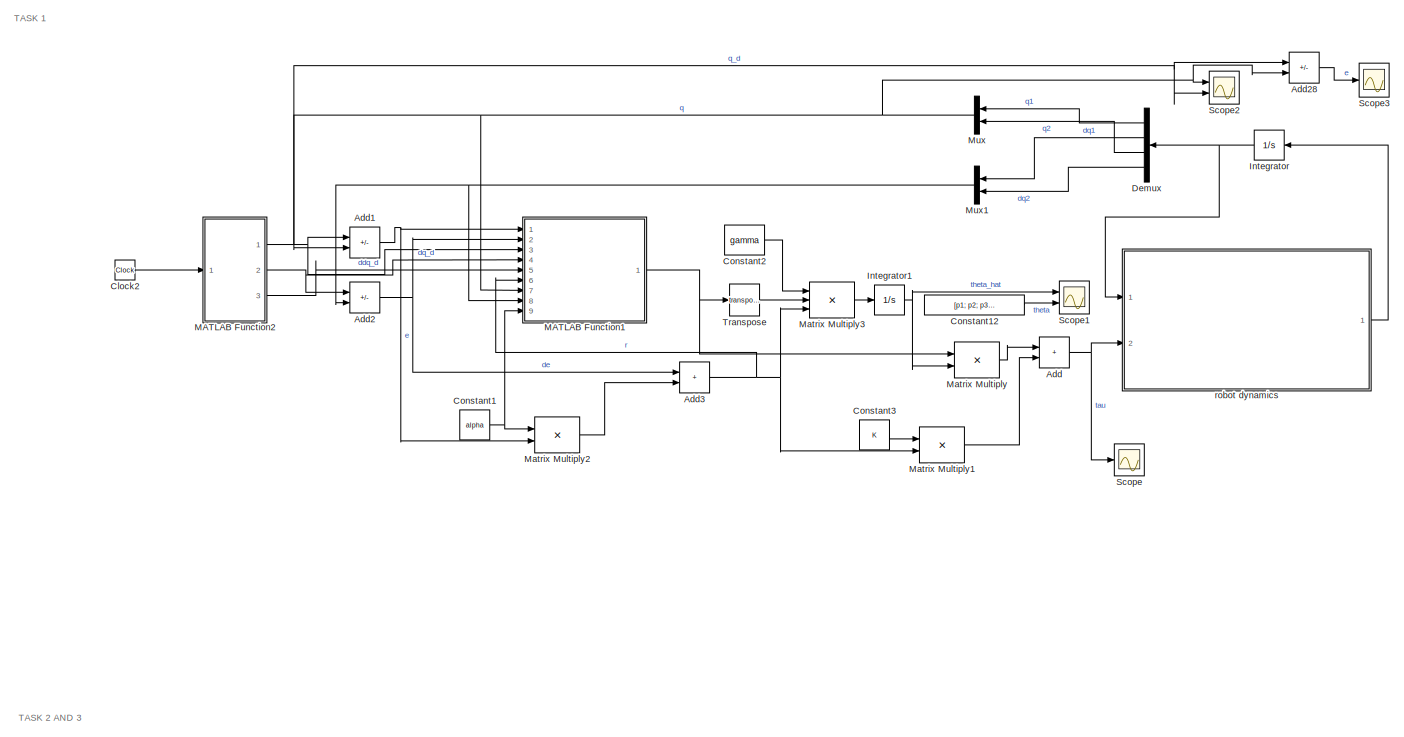
[diagram: root canvas - part 1/9, top left region]
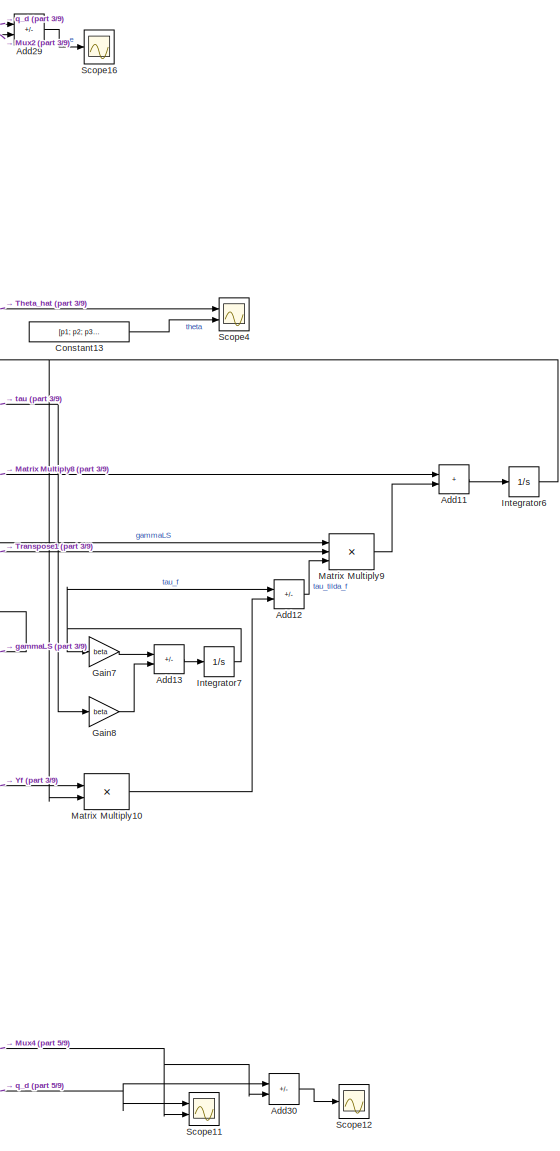
[diagram: root canvas - part 2/9, middle right region]
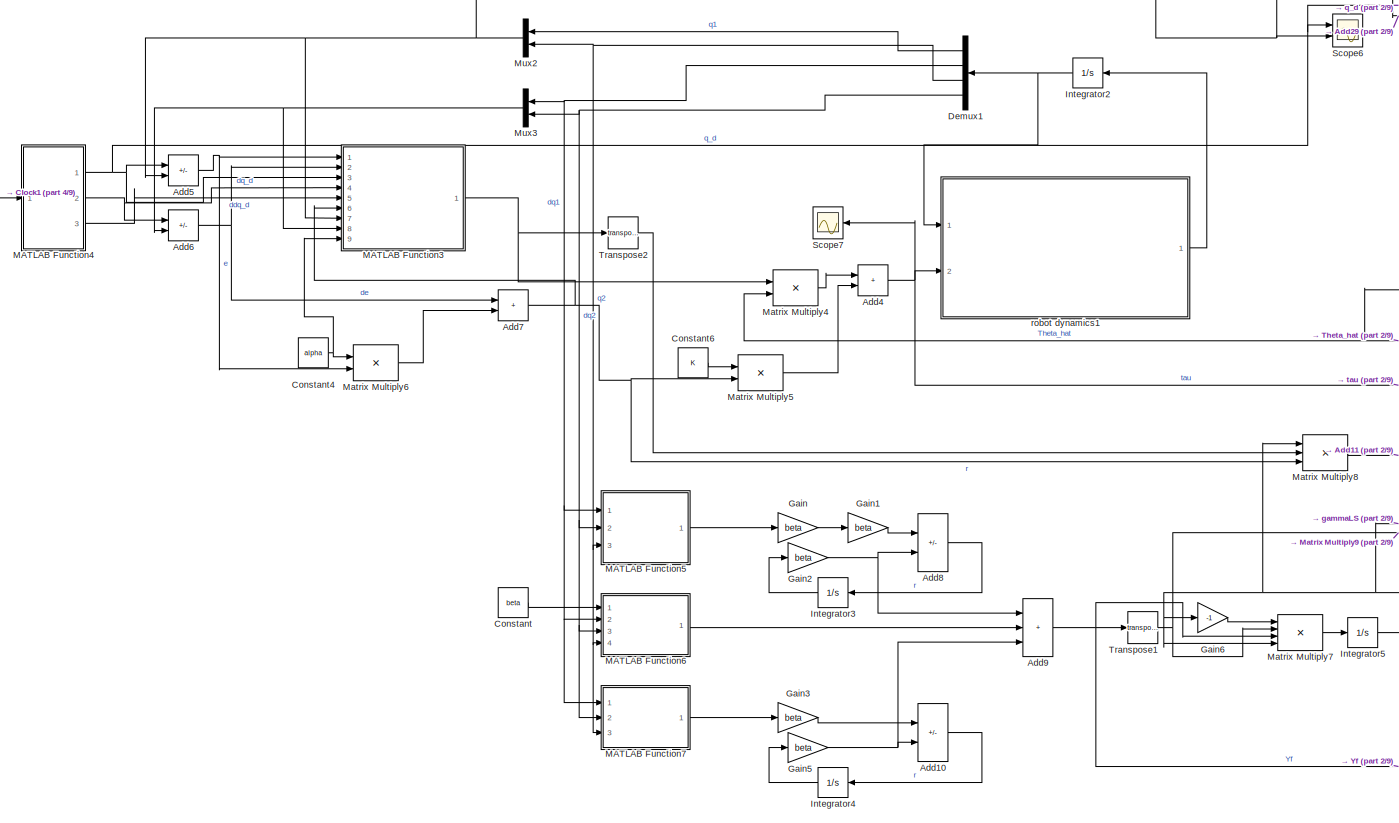
[diagram: root canvas - part 3/9, central region]
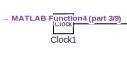
[diagram: root canvas - part 4/9, top left region]
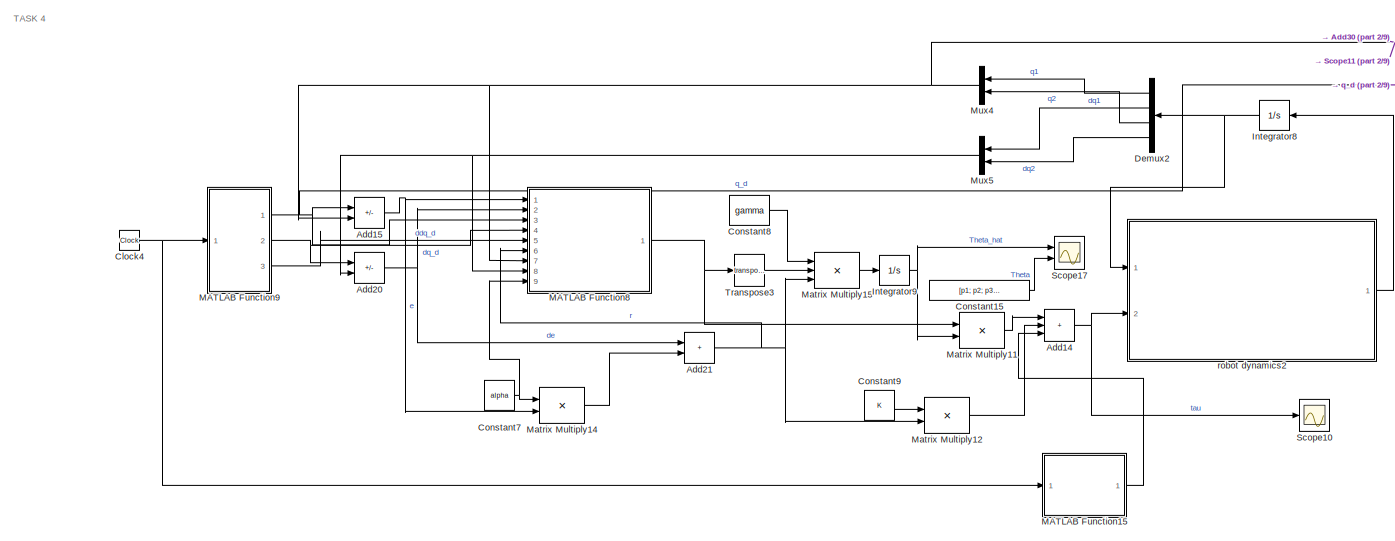
[diagram: root canvas - part 5/9, middle left region]
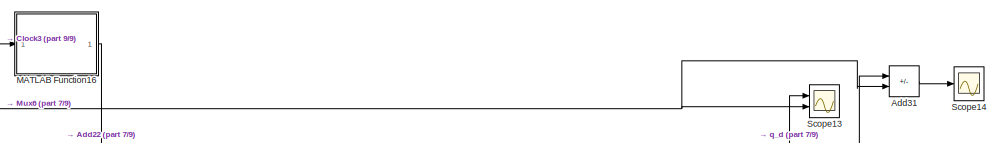
[diagram: root canvas - part 6/9, bottom center region]
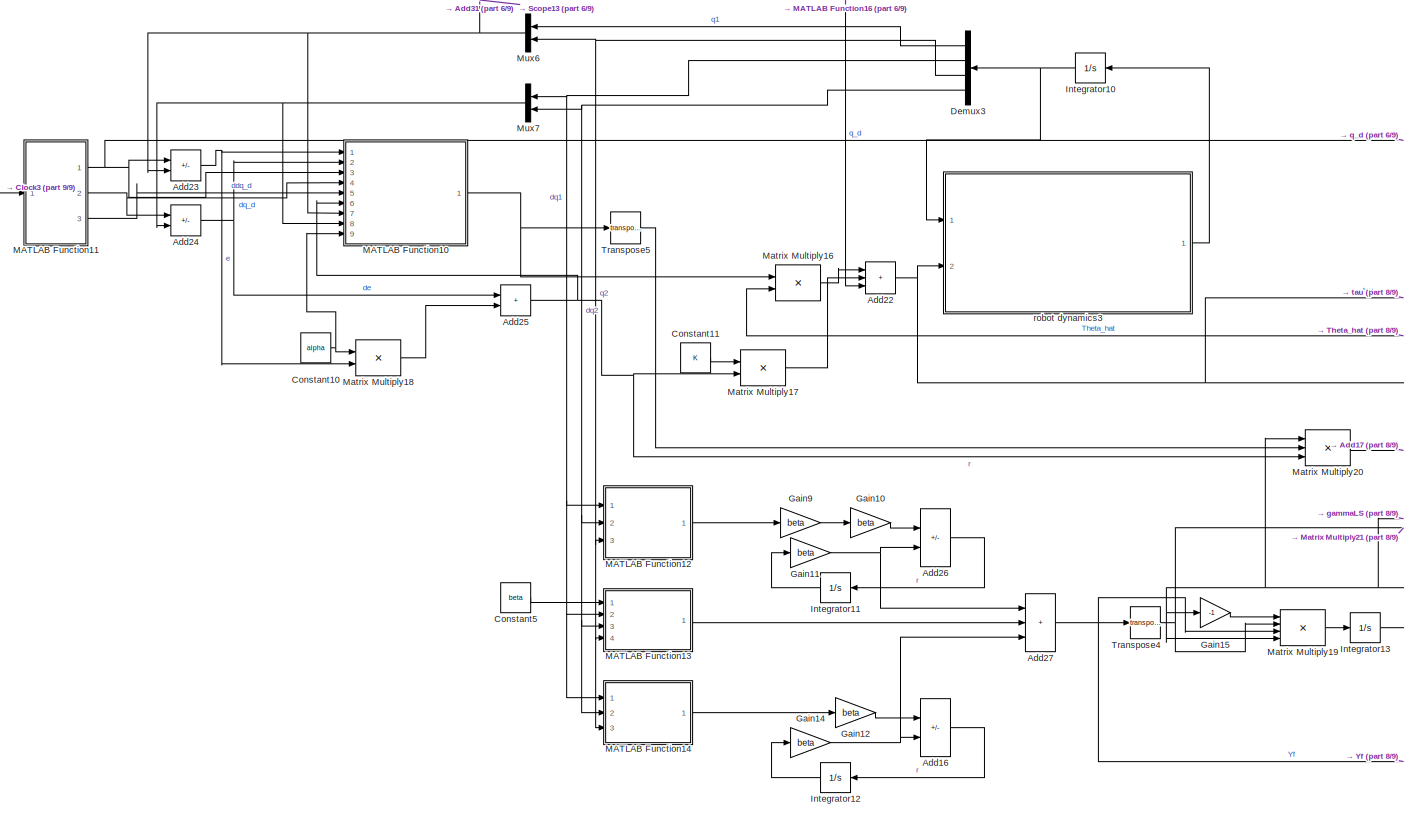
[diagram: root canvas - part 7/9, bottom center region]
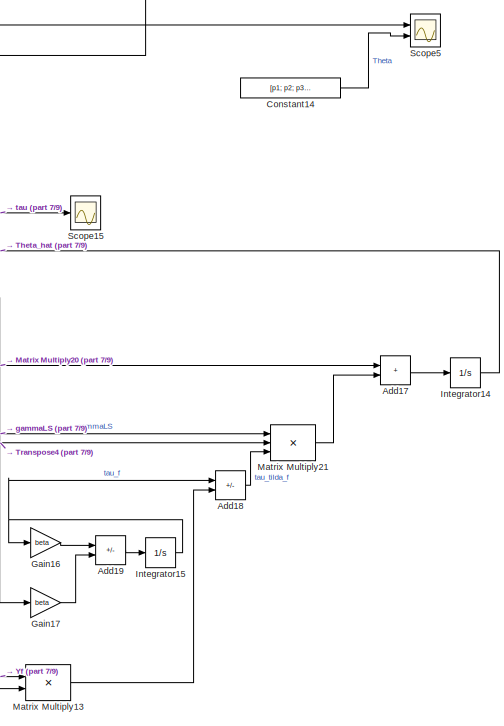
[diagram: root canvas - part 8/9, bottom right region]
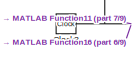
[diagram: root canvas - part 9/9, bottom left region]
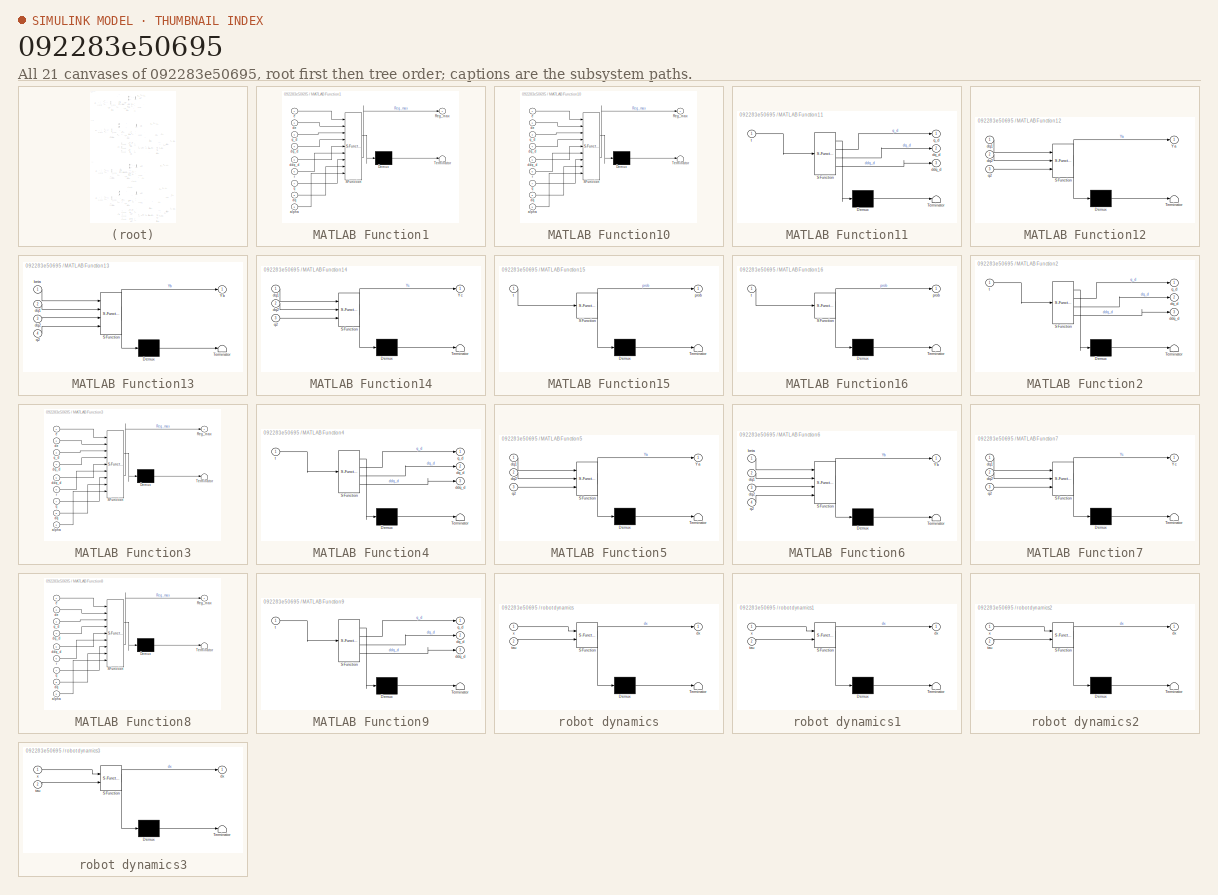
[diagram: thumbnail index - all 21 canvases of the model, root first then tree order]
MODEL slx_092283e50695
KIND model
CONFIG AbsTol = auto
CONFIG EnableMultiTasking = off
CONFIG FixedStep = 1e-3
CONFIG InitFcn = acm_init
CONFIG MaxStep = auto
CONFIG MinStep = auto
CONFIG RelTol = 1e-3
CONFIG SampleTimeConstraint = Unconstrained
CONFIG Solver = ode4
CONFIG SolverName = ode4
CONFIG StartTime = 0.0
CONFIG StopTime = 30
BLOCK [Sum] Add
  IconShape = rectangular
  Ports = [2, 1]
BLOCK [Sum] Add1
  IconShape = rectangular
  Inputs = +-
  Ports = [2, 1]
BLOCK [Sum] Add10
  IconShape = rectangular
  Inputs = +-
  Ports = [2, 1]
BLOCK [Sum] Add11
  IconShape = rectangular
  Ports = [2, 1]
BLOCK [Sum] Add12
  IconShape = rectangular
  Inputs = +-
  Ports = [2, 1]
BLOCK [Sum] Add13
  IconShape = rectangular
  Inputs = -+
  Ports = [2, 1]
BLOCK [Sum] Add14
  IconShape = rectangular
  Inputs = +++
  Ports = [3, 1]
BLOCK [Sum] Add15
  IconShape = rectangular
  Inputs = +-
  Ports = [2, 1]
BLOCK [Sum] Add16
  IconShape = rectangular
  Inputs = +-
  Ports = [2, 1]
BLOCK [Sum] Add17
  IconShape = rectangular
  Ports = [2, 1]
BLOCK [Sum] Add18
  IconShape = rectangular
  Inputs = +-
  Ports = [2, 1]
BLOCK [Sum] Add19
  IconShape = rectangular
  Inputs = -+
  Ports = [2, 1]
BLOCK [Sum] Add2
  IconShape = rectangular
  Inputs = +-
  Ports = [2, 1]
BLOCK [Sum] Add20
  IconShape = rectangular
  Inputs = +-
  Ports = [2, 1]
BLOCK [Sum] Add21
  IconShape = rectangular
  Ports = [2, 1]
BLOCK [Sum] Add22
  IconShape = rectangular
  Inputs = +++
  Ports = [3, 1]
BLOCK [Sum] Add23
  IconShape = rectangular
  Inputs = +-
  Ports = [2, 1]
BLOCK [Sum] Add24
  IconShape = rectangular
  Inputs = +-
  Ports = [2, 1]
BLOCK [Sum] Add25
  IconShape = rectangular
  Ports = [2, 1]
BLOCK [Sum] Add26
  IconShape = rectangular
  Inputs = --
  Ports = [2, 1]
BLOCK [Sum] Add27
  IconShape = rectangular
  Inputs = +++
  Ports = [3, 1]
BLOCK [Sum] Add28
  IconShape = rectangular
  Inputs = +-
  Ports = [2, 1]
BLOCK [Sum] Add29
  IconShape = rectangular
  Inputs = +-
  Ports = [2, 1]
BLOCK [Sum] Add3
  IconShape = rectangular
  Ports = [2, 1]
BLOCK [Sum] Add30
  IconShape = rectangular
  Inputs = +-
  Ports = [2, 1]
BLOCK [Sum] Add31
  IconShape = rectangular
  Inputs = +-
  Ports = [2, 1]
BLOCK [Sum] Add4
  IconShape = rectangular
  Ports = [2, 1]
BLOCK [Sum] Add5
  IconShape = rectangular
  Inputs = +-
  Ports = [2, 1]
BLOCK [Sum] Add6
  IconShape = rectangular
  Inputs = +-
  Ports = [2, 1]
BLOCK [Sum] Add7
  IconShape = rectangular
  Ports = [2, 1]
BLOCK [Sum] Add8
  IconShape = rectangular
  Inputs = --
  Ports = [2, 1]
BLOCK [Sum] Add9
  IconShape = rectangular
  Inputs = +++
  Ports = [3, 1]
BLOCK [Clock] Clock1
BLOCK [Clock] Clock2
BLOCK [Clock] Clock3
BLOCK [Clock] Clock4
BLOCK [Constant] Constant
  Value = beta
BLOCK [Constant] Constant1
  Value = alpha
BLOCK [Constant] Constant10
  Value = alpha
BLOCK [Constant] Constant11
  Value = K
BLOCK [Constant] Constant12
  Value = [p1; p2; p3; fd1; fd2]
BLOCK [Constant] Constant13
  Value = [p1; p2; p3; fd1; fd2]
BLOCK [Constant] Constant14
  Value = [p1; p2; p3; fd1; fd2]
BLOCK [Constant] Constant15
  Value = [p1; p2; p3; fd1; fd2]
BLOCK [Constant] Constant2
  Value = gamma
BLOCK [Constant] Constant3
  Value = K
BLOCK [Constant] Constant4
  Value = alpha
BLOCK [Constant] Constant5
  Value = beta
BLOCK [Constant] Constant6
  Value = K
BLOCK [Constant] Constant7
  Value = alpha
BLOCK [Constant] Constant8
  Value = gamma
BLOCK [Constant] Constant9
  Value = K
BLOCK [Demux] Demux
  Ports = [1, 4]
BLOCK [Demux] Demux1
  Ports = [1, 4]
BLOCK [Demux] Demux2
  Ports = [1, 4]
BLOCK [Demux] Demux3
  Ports = [1, 4]
BLOCK [Gain] Gain
  Gain = beta
BLOCK [Gain] Gain1
  Gain = beta
BLOCK [Gain] Gain10
  Gain = beta
BLOCK [Gain] Gain11
  Gain = beta
BLOCK [Gain] Gain12
  Gain = beta
BLOCK [Gain] Gain14
  Gain = beta
BLOCK [Gain] Gain15
  Gain = -1
BLOCK [Gain] Gain16
  Gain = beta
BLOCK [Gain] Gain17
  Gain = beta
BLOCK [Gain] Gain2
  Gain = beta
BLOCK [Gain] Gain3
  Gain = beta
BLOCK [Gain] Gain5
  Gain = beta
BLOCK [Gain] Gain6
  Gain = -1
BLOCK [Gain] Gain7
  Gain = beta
BLOCK [Gain] Gain8
  Gain = beta
BLOCK [Gain] Gain9
  Gain = beta
BLOCK [Integrator] Integrator
  InitialCondition = [0;0;0;0]
  Ports = [1, 1]
BLOCK [Integrator] Integrator1
  Ports = [1, 1]
BLOCK [Integrator] Integrator10
  InitialCondition = [0;0;0;0]
  Ports = [1, 1]
BLOCK [Integrator] Integrator11
  Ports = [1, 1]
BLOCK [Integrator] Integrator12
  Ports = [1, 1]
BLOCK [Integrator] Integrator13
  InitialCondition = [1 0 0 0 0; 0 1 0 0 0; 0 0 1 0 0; 0 0 0 1 0; 0 0 0 0 1]
  Ports = [1, 1]
BLOCK [Integrator] Integrator14
  Ports = [1, 1]
BLOCK [Integrator] Integrator15
  Ports = [1, 1]
BLOCK [Integrator] Integrator2
  InitialCondition = [0;0;0;0]
  Ports = [1, 1]
BLOCK [Integrator] Integrator3
  Ports = [1, 1]
BLOCK [Integrator] Integrator4
  Ports = [1, 1]
BLOCK [Integrator] Integrator5
  InitialCondition = [1 0 0 0 0; 0 1 0 0 0; 0 0 1 0 0; 0 0 0 1 0; 0 0 0 0 1]
  Ports = [1, 1]
BLOCK [Integrator] Integrator6
  Ports = [1, 1]
BLOCK [Integrator] Integrator7
  Ports = [1, 1]
BLOCK [Integrator] Integrator8
  InitialCondition = [0;0;0;0]
  Ports = [1, 1]
BLOCK [Integrator] Integrator9
  Ports = [1, 1]
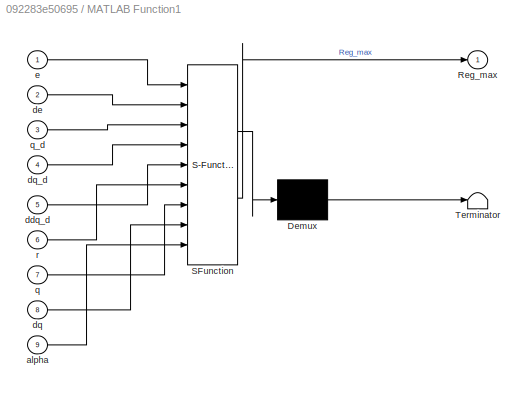
BLOCK [SubSystem] MATLAB Function1
  ErrorFcn = Stateflow.Translate.translate
  PermitHierarchicalResolution = ExplicitOnly
  Ports = [9, 1]
  RequestExecContextInheritance = off
  SFBlockType = MATLAB Function
  TreatAsAtomicUnit = on
BLOCK [Demux] MATLAB Function1/ Demux 
  Outputs = 1
  Ports = [1, 1]
BLOCK [S-Function] MATLAB Function1/ SFunction 
  EnableBusSupport = on
  FunctionName = sf_sfun
  PortCounts = [9 2]
  Ports = [9, 2]
  SFcnIsStateOwnerBlock = off
  SFunctionDeploymentMode = off
  Tag = Stateflow S-Function 1
BLOCK [Terminator] MATLAB Function1/ Terminator 
BLOCK [Outport] MATLAB Function1/Reg_max
  VectorParamsAs1DForOutWhenUnconnected = off
BLOCK [Inport] MATLAB Function1/alpha
  Port = 9
BLOCK [Inport] MATLAB Function1/ddq_d
  Port = 5
BLOCK [Inport] MATLAB Function1/de
  Port = 2
BLOCK [Inport] MATLAB Function1/dq
  Port = 8
BLOCK [Inport] MATLAB Function1/dq_d
  Port = 4
BLOCK [Inport] MATLAB Function1/e
BLOCK [Inport] MATLAB Function1/q
  Port = 7
BLOCK [Inport] MATLAB Function1/q_d
  Port = 3
BLOCK [Inport] MATLAB Function1/r
  Port = 6
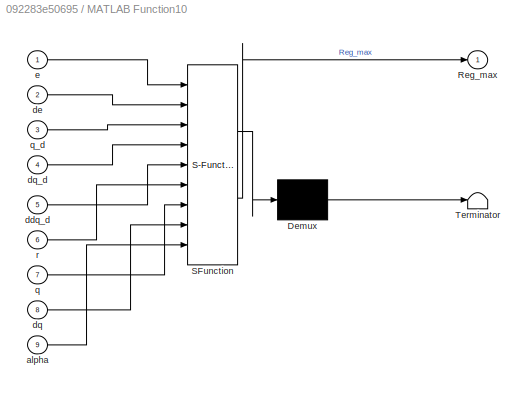
BLOCK [SubSystem] MATLAB Function10
  ErrorFcn = Stateflow.Translate.translate
  PermitHierarchicalResolution = ExplicitOnly
  Ports = [9, 1]
  RequestExecContextInheritance = off
  SFBlockType = MATLAB Function
  TreatAsAtomicUnit = on
BLOCK [Demux] MATLAB Function10/ Demux 
  Outputs = 1
  Ports = [1, 1]
BLOCK [S-Function] MATLAB Function10/ SFunction 
  EnableBusSupport = on
  FunctionName = sf_sfun
  PortCounts = [9 2]
  Ports = [9, 2]
  SFcnIsStateOwnerBlock = off
  SFunctionDeploymentMode = off
  Tag = Stateflow S-Function 10
BLOCK [Terminator] MATLAB Function10/ Terminator 
BLOCK [Outport] MATLAB Function10/Reg_max
  VectorParamsAs1DForOutWhenUnconnected = off
BLOCK [Inport] MATLAB Function10/alpha
  Port = 9
BLOCK [Inport] MATLAB Function10/ddq_d
  Port = 5
BLOCK [Inport] MATLAB Function10/de
  Port = 2
BLOCK [Inport] MATLAB Function10/dq
  Port = 8
BLOCK [Inport] MATLAB Function10/dq_d
  Port = 4
BLOCK [Inport] MATLAB Function10/e
BLOCK [Inport] MATLAB Function10/q
  Port = 7
BLOCK [Inport] MATLAB Function10/q_d
  Port = 3
BLOCK [Inport] MATLAB Function10/r
  Port = 6
BLOCK [SubSystem] MATLAB Function11
  ErrorFcn = Stateflow.Translate.translate
  PermitHierarchicalResolution = ExplicitOnly
  Ports = [1, 3]
  RequestExecContextInheritance = off
  SFBlockType = MATLAB Function
  TreatAsAtomicUnit = on
BLOCK [Demux] MATLAB Function11/ Demux 
  Outputs = 1
  Ports = [1, 1]
BLOCK [S-Function] MATLAB Function11/ SFunction 
  EnableBusSupport = on
  FunctionName = sf_sfun
  PortCounts = [1 4]
  Ports = [1, 4]
  SFcnIsStateOwnerBlock = off
  SFunctionDeploymentMode = off
  Tag = Stateflow S-Function 11
BLOCK [Terminator] MATLAB Function11/ Terminator 
BLOCK [Outport] MATLAB Function11/ddq_d
  Port = 3
BLOCK [Outport] MATLAB Function11/dq_d
  Port = 2
BLOCK [Outport] MATLAB Function11/q_d
  VectorParamsAs1DForOutWhenUnconnected = off
BLOCK [Inport] MATLAB Function11/t
BLOCK [SubSystem] MATLAB Function12
  ErrorFcn = Stateflow.Translate.translate
  PermitHierarchicalResolution = ExplicitOnly
  Ports = [3, 1]
  RequestExecContextInheritance = off
  SFBlockType = MATLAB Function
  TreatAsAtomicUnit = on
BLOCK [Demux] MATLAB Function12/ Demux 
  Outputs = 1
  Ports = [1, 1]
BLOCK [S-Function] MATLAB Function12/ SFunction 
  EnableBusSupport = on
  FunctionName = sf_sfun
  PortCounts = [3 2]
  Ports = [3, 2]
  SFcnIsStateOwnerBlock = off
  SFunctionDeploymentMode = off
  Tag = Stateflow S-Function 12
BLOCK [Terminator] MATLAB Function12/ Terminator 
BLOCK [Outport] MATLAB Function12/Ya
  VectorParamsAs1DForOutWhenUnconnected = off
BLOCK [Inport] MATLAB Function12/dq1
BLOCK [Inport] MATLAB Function12/dq2
  Port = 2
BLOCK [Inport] MATLAB Function12/q2
  Port = 3
BLOCK [SubSystem] MATLAB Function13
  ErrorFcn = Stateflow.Translate.translate
  PermitHierarchicalResolution = ExplicitOnly
  Ports = [4, 1]
  RequestExecContextInheritance = off
  SFBlockType = MATLAB Function
  TreatAsAtomicUnit = on
BLOCK [Demux] MATLAB Function13/ Demux 
  Outputs = 1
  Ports = [1, 1]
BLOCK [S-Function] MATLAB Function13/ SFunction 
  EnableBusSupport = on
  FunctionName = sf_sfun
  PortCounts = [4 2]
  Ports = [4, 2]
  SFcnIsStateOwnerBlock = off
  SFunctionDeploymentMode = off
  Tag = Stateflow S-Function 13
BLOCK [Terminator] MATLAB Function13/ Terminator 
BLOCK [Outport] MATLAB Function13/Yb
  VectorParamsAs1DForOutWhenUnconnected = off
BLOCK [Inport] MATLAB Function13/beta
BLOCK [Inport] MATLAB Function13/dq1
  Port = 2
BLOCK [Inport] MATLAB Function13/dq2
  Port = 3
BLOCK [Inport] MATLAB Function13/q2
  Port = 4
BLOCK [SubSystem] MATLAB Function14
  ErrorFcn = Stateflow.Translate.translate
  PermitHierarchicalResolution = ExplicitOnly
  Ports = [3, 1]
  RequestExecContextInheritance = off
  SFBlockType = MATLAB Function
  TreatAsAtomicUnit = on
BLOCK [Demux] MATLAB Function14/ Demux 
  Outputs = 1
  Ports = [1, 1]
BLOCK [S-Function] MATLAB Function14/ SFunction 
  EnableBusSupport = on
  FunctionName = sf_sfun
  PortCounts = [3 2]
  Ports = [3, 2]
  SFcnIsStateOwnerBlock = off
  SFunctionDeploymentMode = off
  Tag = Stateflow S-Function 14
BLOCK [Terminator] MATLAB Function14/ Terminator 
BLOCK [Outport] MATLAB Function14/Yc
  VectorParamsAs1DForOutWhenUnconnected = off
BLOCK [Inport] MATLAB Function14/dq1
BLOCK [Inport] MATLAB Function14/dq2
  Port = 2
BLOCK [Inport] MATLAB Function14/q2
  Port = 3
BLOCK [SubSystem] MATLAB Function15
  ErrorFcn = Stateflow.Translate.translate
  PermitHierarchicalResolution = ExplicitOnly
  Ports = [1, 1]
  RequestExecContextInheritance = off
  SFBlockType = MATLAB Function
  TreatAsAtomicUnit = on
BLOCK [Demux] MATLAB Function15/ Demux 
  Outputs = 1
  Ports = [1, 1]
BLOCK [S-Function] MATLAB Function15/ SFunction 
  EnableBusSupport = on
  FunctionName = sf_sfun
  PortCounts = [1 2]
  Ports = [1, 2]
  SFcnIsStateOwnerBlock = off
  SFunctionDeploymentMode = off
  Tag = Stateflow S-Function 19
BLOCK [Terminator] MATLAB Function15/ Terminator 
BLOCK [Outport] MATLAB Function15/prob
  VectorParamsAs1DForOutWhenUnconnected = off
BLOCK [Inport] MATLAB Function15/t
BLOCK [SubSystem] MATLAB Function16
  ErrorFcn = Stateflow.Translate.translate
  PermitHierarchicalResolution = ExplicitOnly
  Ports = [1, 1]
  RequestExecContextInheritance = off
  SFBlockType = MATLAB Function
  TreatAsAtomicUnit = on
BLOCK [Demux] MATLAB Function16/ Demux 
  Outputs = 1
  Ports = [1, 1]
BLOCK [S-Function] MATLAB Function16/ SFunction 
  EnableBusSupport = on
  FunctionName = sf_sfun
  PortCounts = [1 2]
  Ports = [1, 2]
  SFcnIsStateOwnerBlock = off
  SFunctionDeploymentMode = off
  Tag = Stateflow S-Function 20
BLOCK [Terminator] MATLAB Function16/ Terminator 
BLOCK [Outport] MATLAB Function16/prob
  VectorParamsAs1DForOutWhenUnconnected = off
BLOCK [Inport] MATLAB Function16/t
BLOCK [SubSystem] MATLAB Function2
  ErrorFcn = Stateflow.Translate.translate
  PermitHierarchicalResolution = ExplicitOnly
  Ports = [1, 3]
  RequestExecContextInheritance = off
  SFBlockType = MATLAB Function
  TreatAsAtomicUnit = on
BLOCK [Demux] MATLAB Function2/ Demux 
  Outputs = 1
  Ports = [1, 1]
BLOCK [S-Function] MATLAB Function2/ SFunction 
  EnableBusSupport = on
  FunctionName = sf_sfun
  PortCounts = [1 4]
  Ports = [1, 4]
  SFcnIsStateOwnerBlock = off
  SFunctionDeploymentMode = off
  Tag = Stateflow S-Function 8
BLOCK [Terminator] MATLAB Function2/ Terminator 
BLOCK [Outport] MATLAB Function2/ddq_d
  Port = 3
BLOCK [Outport] MATLAB Function2/dq_d
  Port = 2
BLOCK [Outport] MATLAB Function2/q_d
  VectorParamsAs1DForOutWhenUnconnected = off
BLOCK [Inport] MATLAB Function2/t
BLOCK [SubSystem] MATLAB Function3
  ErrorFcn = Stateflow.Translate.translate
  PermitHierarchicalResolution = ExplicitOnly
  Ports = [9, 1]
  RequestExecContextInheritance = off
  SFBlockType = MATLAB Function
  TreatAsAtomicUnit = on
BLOCK [Demux] MATLAB Function3/ Demux 
  Outputs = 1
  Ports = [1, 1]
BLOCK [S-Function] MATLAB Function3/ SFunction 
  EnableBusSupport = on
  FunctionName = sf_sfun
  PortCounts = [9 2]
  Ports = [9, 2]
  SFcnIsStateOwnerBlock = off
  SFunctionDeploymentMode = off
  Tag = Stateflow S-Function 2
BLOCK [Terminator] MATLAB Function3/ Terminator 
BLOCK [Outport] MATLAB Function3/Reg_max
  VectorParamsAs1DForOutWhenUnconnected = off
BLOCK [Inport] MATLAB Function3/alpha
  Port = 9
BLOCK [Inport] MATLAB Function3/ddq_d
  Port = 5
BLOCK [Inport] MATLAB Function3/de
  Port = 2
BLOCK [Inport] MATLAB Function3/dq
  Port = 8
BLOCK [Inport] MATLAB Function3/dq_d
  Port = 4
BLOCK [Inport] MATLAB Function3/e
BLOCK [Inport] MATLAB Function3/q
  Port = 7
BLOCK [Inport] MATLAB Function3/q_d
  Port = 3
BLOCK [Inport] MATLAB Function3/r
  Port = 6
BLOCK [SubSystem] MATLAB Function4
  ErrorFcn = Stateflow.Translate.translate
  PermitHierarchicalResolution = ExplicitOnly
  Ports = [1, 3]
  RequestExecContextInheritance = off
  SFBlockType = MATLAB Function
  TreatAsAtomicUnit = on
BLOCK [Demux] MATLAB Function4/ Demux 
  Outputs = 1
  Ports = [1, 1]
BLOCK [S-Function] MATLAB Function4/ SFunction 
  EnableBusSupport = on
  FunctionName = sf_sfun
  PortCounts = [1 4]
  Ports = [1, 4]
  SFcnIsStateOwnerBlock = off
  SFunctionDeploymentMode = off
  Tag = Stateflow S-Function 3
BLOCK [Terminator] MATLAB Function4/ Terminator 
BLOCK [Outport] MATLAB Function4/ddq_d
  Port = 3
BLOCK [Outport] MATLAB Function4/dq_d
  Port = 2
BLOCK [Outport] MATLAB Function4/q_d
  VectorParamsAs1DForOutWhenUnconnected = off
BLOCK [Inport] MATLAB Function4/t
BLOCK [SubSystem] MATLAB Function5
  ErrorFcn = Stateflow.Translate.translate
  PermitHierarchicalResolution = ExplicitOnly
  Ports = [3, 1]
  RequestExecContextInheritance = off
  SFBlockType = MATLAB Function
  TreatAsAtomicUnit = on
BLOCK [Demux] MATLAB Function5/ Demux 
  Outputs = 1
  Ports = [1, 1]
BLOCK [S-Function] MATLAB Function5/ SFunction 
  EnableBusSupport = on
  FunctionName = sf_sfun
  PortCounts = [3 2]
  Ports = [3, 2]
  SFcnIsStateOwnerBlock = off
  SFunctionDeploymentMode = off
  Tag = Stateflow S-Function 6
BLOCK [Terminator] MATLAB Function5/ Terminator 
BLOCK [Outport] MATLAB Function5/Ya
  VectorParamsAs1DForOutWhenUnconnected = off
BLOCK [Inport] MATLAB Function5/dq1
BLOCK [Inport] MATLAB Function5/dq2
  Port = 2
BLOCK [Inport] MATLAB Function5/q2
  Port = 3
BLOCK [SubSystem] MATLAB Function6
  ErrorFcn = Stateflow.Translate.translate
  PermitHierarchicalResolution = ExplicitOnly
  Ports = [4, 1]
  RequestExecContextInheritance = off
  SFBlockType = MATLAB Function
  TreatAsAtomicUnit = on
BLOCK [Demux] MATLAB Function6/ Demux 
  Outputs = 1
  Ports = [1, 1]
BLOCK [S-Function] MATLAB Function6/ SFunction 
  EnableBusSupport = on
  FunctionName = sf_sfun
  PortCounts = [4 2]
  Ports = [4, 2]
  SFcnIsStateOwnerBlock = off
  SFunctionDeploymentMode = off
  Tag = Stateflow S-Function 7
BLOCK [Terminator] MATLAB Function6/ Terminator 
BLOCK [Outport] MATLAB Function6/Yb
  VectorParamsAs1DForOutWhenUnconnected = off
BLOCK [Inport] MATLAB Function6/beta
BLOCK [Inport] MATLAB Function6/dq1
  Port = 2
BLOCK [Inport] MATLAB Function6/dq2
  Port = 3
BLOCK [Inport] MATLAB Function6/q2
  Port = 4
BLOCK [SubSystem] MATLAB Function7
  ErrorFcn = Stateflow.Translate.translate
  PermitHierarchicalResolution = ExplicitOnly
  Ports = [3, 1]
  RequestExecContextInheritance = off
  SFBlockType = MATLAB Function
  TreatAsAtomicUnit = on
BLOCK [Demux] MATLAB Function7/ Demux 
  Outputs = 1
  Ports = [1, 1]
BLOCK [S-Function] MATLAB Function7/ SFunction 
  EnableBusSupport = on
  FunctionName = sf_sfun
  PortCounts = [3 2]
  Ports = [3, 2]
  SFcnIsStateOwnerBlock = off
  SFunctionDeploymentMode = off
  Tag = Stateflow S-Function 9
BLOCK [Terminator] MATLAB Function7/ Terminator 
BLOCK [Outport] MATLAB Function7/Yc
  VectorParamsAs1DForOutWhenUnconnected = off
BLOCK [Inport] MATLAB Function7/dq1
BLOCK [Inport] MATLAB Function7/dq2
  Port = 2
BLOCK [Inport] MATLAB Function7/q2
  Port = 3
BLOCK [SubSystem] MATLAB Function8
  ErrorFcn = Stateflow.Translate.translate
  PermitHierarchicalResolution = ExplicitOnly
  Ports = [9, 1]
  RequestExecContextInheritance = off
  SFBlockType = MATLAB Function
  TreatAsAtomicUnit = on
BLOCK [Demux] MATLAB Function8/ Demux 
  Outputs = 1
  Ports = [1, 1]
BLOCK [S-Function] MATLAB Function8/ SFunction 
  EnableBusSupport = on
  FunctionName = sf_sfun
  PortCounts = [9 2]
  Ports = [9, 2]
  SFcnIsStateOwnerBlock = off
  SFunctionDeploymentMode = off
  Tag = Stateflow S-Function 15
BLOCK [Terminator] MATLAB Function8/ Terminator 
BLOCK [Outport] MATLAB Function8/Reg_max
  VectorParamsAs1DForOutWhenUnconnected = off
BLOCK [Inport] MATLAB Function8/alpha
  Port = 9
BLOCK [Inport] MATLAB Function8/ddq_d
  Port = 5
BLOCK [Inport] MATLAB Function8/de
  Port = 2
BLOCK [Inport] MATLAB Function8/dq
  Port = 8
BLOCK [Inport] MATLAB Function8/dq_d
  Port = 4
BLOCK [Inport] MATLAB Function8/e
BLOCK [Inport] MATLAB Function8/q
  Port = 7
BLOCK [Inport] MATLAB Function8/q_d
  Port = 3
BLOCK [Inport] MATLAB Function8/r
  Port = 6
BLOCK [SubSystem] MATLAB Function9
  ErrorFcn = Stateflow.Translate.translate
  PermitHierarchicalResolution = ExplicitOnly
  Ports = [1, 3]
  RequestExecContextInheritance = off
  SFBlockType = MATLAB Function
  TreatAsAtomicUnit = on
BLOCK [Demux] MATLAB Function9/ Demux 
  Outputs = 1
  Ports = [1, 1]
BLOCK [S-Function] MATLAB Function9/ SFunction 
  EnableBusSupport = on
  FunctionName = sf_sfun
  PortCounts = [1 4]
  Ports = [1, 4]
  SFcnIsStateOwnerBlock = off
  SFunctionDeploymentMode = off
  Tag = Stateflow S-Function 16
BLOCK [Terminator] MATLAB Function9/ Terminator 
BLOCK [Outport] MATLAB Function9/ddq_d
  Port = 3
BLOCK [Outport] MATLAB Function9/dq_d
  Port = 2
BLOCK [Outport] MATLAB Function9/q_d
  VectorParamsAs1DForOutWhenUnconnected = off
BLOCK [Inport] MATLAB Function9/t
BLOCK [Product] Matrix Multiply
  Multiplication = Matrix(*)
  Ports = [2, 1]
BLOCK [Product] Matrix Multiply1
  Multiplication = Matrix(*)
  Ports = [2, 1]
BLOCK [Product] Matrix Multiply10
  Multiplication = Matrix(*)
  Ports = [2, 1]
BLOCK [Product] Matrix Multiply11
  Multiplication = Matrix(*)
  Ports = [2, 1]
BLOCK [Product] Matrix Multiply12
  Multiplication = Matrix(*)
  Ports = [2, 1]
BLOCK [Product] Matrix Multiply13
  Multiplication = Matrix(*)
  Ports = [2, 1]
BLOCK [Product] Matrix Multiply14
  Multiplication = Matrix(*)
  Ports = [2, 1]
BLOCK [Product] Matrix Multiply15
  Inputs = 3
  Multiplication = Matrix(*)
  Ports = [3, 1]
BLOCK [Product] Matrix Multiply16
  Multiplication = Matrix(*)
  Ports = [2, 1]
BLOCK [Product] Matrix Multiply17
  Multiplication = Matrix(*)
  Ports = [2, 1]
BLOCK [Product] Matrix Multiply18
  Multiplication = Matrix(*)
  Ports = [2, 1]
BLOCK [Product] Matrix Multiply19
  Inputs = 4
  Multiplication = Matrix(*)
  Ports = [4, 1]
BLOCK [Product] Matrix Multiply2
  Multiplication = Matrix(*)
  Ports = [2, 1]
BLOCK [Product] Matrix Multiply20
  Inputs = 3
  Multiplication = Matrix(*)
  Ports = [3, 1]
BLOCK [Product] Matrix Multiply21
  Inputs = 3
  Multiplication = Matrix(*)
  Ports = [3, 1]
BLOCK [Product] Matrix Multiply3
  Inputs = 3
  Multiplication = Matrix(*)
  Ports = [3, 1]
BLOCK [Product] Matrix Multiply4
  Multiplication = Matrix(*)
  Ports = [2, 1]
BLOCK [Product] Matrix Multiply5
  Multiplication = Matrix(*)
  Ports = [2, 1]
BLOCK [Product] Matrix Multiply6
  Multiplication = Matrix(*)
  Ports = [2, 1]
BLOCK [Product] Matrix Multiply7
  Inputs = 4
  Multiplication = Matrix(*)
  Ports = [4, 1]
BLOCK [Product] Matrix Multiply8
  Inputs = 3
  Multiplication = Matrix(*)
  Ports = [3, 1]
BLOCK [Product] Matrix Multiply9
  Inputs = 3
  Multiplication = Matrix(*)
  Ports = [3, 1]
BLOCK [Mux] Mux
  DisplayOption = bar
  Inputs = 2
  Ports = [2, 1]
BLOCK [Mux] Mux1
  DisplayOption = bar
  Inputs = 2
  Ports = [2, 1]
BLOCK [Mux] Mux2
  DisplayOption = bar
  Inputs = 2
  Ports = [2, 1]
BLOCK [Mux] Mux3
  DisplayOption = bar
  Inputs = 2
  Ports = [2, 1]
BLOCK [Mux] Mux4
  DisplayOption = bar
  Inputs = 2
  Ports = [2, 1]
BLOCK [Mux] Mux5
  DisplayOption = bar
  Inputs = 2
  Ports = [2, 1]
BLOCK [Mux] Mux6
  DisplayOption = bar
  Inputs = 2
  Ports = [2, 1]
BLOCK [Mux] Mux7
  DisplayOption = bar
  Inputs = 2
  Ports = [2, 1]
BLOCK [Scope] Scope
  Floating = off
  NumInputPorts = 1
  Ports = [1]
  ScopeSpecificationString = Simulink.scopes.TimeScopeBlockCfg('CurrentConfiguration', extmgr.ConfigurationSet(extmgr.Configuration('Core','General UI',true),extmgr.Configuration('Core','Source UI',true),extmgr.Configuration('Sources','WiredSimulink',true),extmgr.Configuration('Visuals','Time Domain',true,'SerializedDisplays',{struct('MinYLimReal','-150.2169','MaxYLimReal','150','YLabelReal','\tau[Nm]','MinYLimMag',' 0.00000'...<+1502ch>
BLOCK [Scope] Scope1
  Floating = off
  NumInputPorts = 2
  Ports = [2]
  ScopeSpecificationString = Simulink.scopes.TimeScopeBlockCfg('CurrentConfiguration', extmgr.ConfigurationSet(extmgr.Configuration('Core','General UI',true),extmgr.Configuration('Core','Source UI',true),extmgr.Configuration('Sources','WiredSimulink',true,'DataLoggingVariableName','ScopeData1'),extmgr.Configuration('Visuals','Time Domain',true,'SerializedDisplays',{struct('MinYLimReal','-10','MaxYLimReal','10','YLabelReal','\...<+1679ch>
BLOCK [Scope] Scope10
  Floating = off
  NumInputPorts = 1
  Ports = [1]
  ScopeSpecificationString = Simulink.scopes.TimeScopeBlockCfg('CurrentConfiguration', extmgr.ConfigurationSet(extmgr.Configuration('Core','General UI',true),extmgr.Configuration('Core','Source UI',true),extmgr.Configuration('Sources','WiredSimulink',true,'DataLoggingVariableName','ScopeData10'),extmgr.Configuration('Visuals','Time Domain',true,'SerializedDisplays',{struct('MinYLimReal','-848.02169','MaxYLimReal','874.15825',...<+1464ch>
BLOCK [Scope] Scope11
  Floating = off
  NumInputPorts = 2
  Ports = [2]
  ScopeSpecificationString = Simulink.scopes.TimeScopeBlockCfg('CurrentConfiguration', extmgr.ConfigurationSet(extmgr.Configuration('Core','General UI',true),extmgr.Configuration('Core','Source UI',true),extmgr.Configuration('Sources','WiredSimulink',true,'DataLoggingVariableName','ScopeData11'),extmgr.Configuration('Visuals','Time Domain',true,'SerializedDisplays',{struct('MinYLimReal','-2.50065','MaxYLimReal','2.50069','YLa...<+1460ch>
BLOCK [Scope] Scope12
  Floating = off
  NumInputPorts = 1
  Ports = [1]
  ScopeSpecificationString = Simulink.scopes.TimeScopeBlockCfg('CurrentConfiguration', extmgr.ConfigurationSet(extmgr.Configuration('Core','General UI',true),extmgr.Configuration('Core','Source UI',true),extmgr.Configuration('Sources','WiredSimulink',true,'DataLoggingVariableName','ScopeData12'),extmgr.Configuration('Visuals','Time Domain',true,'SerializedDisplays',{struct('MinYLimReal','-0.2696','MaxYLimReal','2.25218','YLab...<+1452ch>
BLOCK [Scope] Scope13
  Floating = off
  NumInputPorts = 2
  Ports = [2]
  ScopeSpecificationString = Simulink.scopes.TimeScopeBlockCfg('CurrentConfiguration', extmgr.ConfigurationSet(extmgr.Configuration('Core','General UI',true),extmgr.Configuration('Core','Source UI',true),extmgr.Configuration('Sources','WiredSimulink',true,'DataLoggingVariableName','ScopeData13'),extmgr.Configuration('Visuals','Time Domain',true,'SerializedDisplays',{struct('MinYLimReal','-2.50065','MaxYLimReal','2.50069','YLa...<+1460ch>
BLOCK [Scope] Scope14
  Floating = off
  NumInputPorts = 1
  Ports = [1]
  ScopeSpecificationString = Simulink.scopes.TimeScopeBlockCfg('CurrentConfiguration', extmgr.ConfigurationSet(extmgr.Configuration('Core','General UI',true),extmgr.Configuration('Core','Source UI',true),extmgr.Configuration('Sources','WiredSimulink',true,'DataLoggingVariableName','ScopeData14'),extmgr.Configuration('Visuals','Time Domain',true,'SerializedDisplays',{struct('MinYLimReal','-0.2696','MaxYLimReal','2.25218','YLab...<+1452ch>
BLOCK [Scope] Scope15
  Floating = off
  NumInputPorts = 1
  Ports = [1]
  ScopeSpecificationString = Simulink.scopes.TimeScopeBlockCfg('CurrentConfiguration', extmgr.ConfigurationSet(extmgr.Configuration('Core','General UI',true),extmgr.Configuration('Core','Source UI',true),extmgr.Configuration('Sources','WiredSimulink',true,'DataLoggingVariableName','ScopeData15'),extmgr.Configuration('Visuals','Time Domain',true,'SerializedDisplays',{struct('MinYLimReal','-406.19538','MaxYLimReal','2267.35504'...<+1467ch>
BLOCK [Scope] Scope16
  Floating = off
  NumInputPorts = 1
  Ports = [1]
  ScopeSpecificationString = Simulink.scopes.TimeScopeBlockCfg('CurrentConfiguration', extmgr.ConfigurationSet(extmgr.Configuration('Core','General UI',true),extmgr.Configuration('Core','Source UI',true),extmgr.Configuration('Sources','WiredSimulink',true,'DataLoggingVariableName','ScopeData1'),extmgr.Configuration('Visuals','Time Domain',true,'SerializedDisplays',{struct('MinYLimReal','-2','MaxYLimReal','3','YLabelReal','e[r...<+1480ch>
BLOCK [Scope] Scope17
  Floating = off
  NumInputPorts = 2
  Ports = [2]
  ScopeSpecificationString = Simulink.scopes.TimeScopeBlockCfg('CurrentConfiguration', extmgr.ConfigurationSet(extmgr.Configuration('Core','General UI',true),extmgr.Configuration('Core','Source UI',true),extmgr.Configuration('Sources','WiredSimulink',true,'DataLoggingVariableName','ScopeData5'),extmgr.Configuration('Visuals','Time Domain',true,'SerializedDisplays',{struct('MinYLimReal','-10','MaxYLimReal','10','YLabelReal','\...<+1679ch>
BLOCK [Scope] Scope2
  Floating = off
  NumInputPorts = 2
  Ports = [2]
  ScopeSpecificationString = Simulink.scopes.TimeScopeBlockCfg('CurrentConfiguration', extmgr.ConfigurationSet(extmgr.Configuration('Core','General UI',true),extmgr.Configuration('Core','Source UI',true),extmgr.Configuration('Sources','WiredSimulink',true,'DataLoggingVariableName','ScopeData2'),extmgr.Configuration('Visuals','Time Domain',true,'SerializedDisplays',{struct('MinYLimReal','-2.50065','MaxYLimReal','2.50069','YLab...<+1459ch>
BLOCK [Scope] Scope3
  Floating = off
  NumInputPorts = 1
  Ports = [1]
  ScopeSpecificationString = Simulink.scopes.TimeScopeBlockCfg('CurrentConfiguration', extmgr.ConfigurationSet(extmgr.Configuration('Core','General UI',true),extmgr.Configuration('Core','Source UI',true),extmgr.Configuration('Sources','WiredSimulink',true,'DataLoggingVariableName','ScopeData3'),extmgr.Configuration('Visuals','Time Domain',true,'SerializedDisplays',{struct('MinYLimReal','-2','MaxYLimReal','3','YLabelReal','e[r...<+1480ch>
BLOCK [Scope] Scope4
  Floating = off
  NumInputPorts = 2
  Ports = [2]
  ScopeSpecificationString = Simulink.scopes.TimeScopeBlockCfg('CurrentConfiguration', extmgr.ConfigurationSet(extmgr.Configuration('Core','General UI',true),extmgr.Configuration('Core','Source UI',true),extmgr.Configuration('Sources','WiredSimulink',true,'DataLoggingVariableName','ScopeData3'),extmgr.Configuration('Visuals','Time Domain',true,'SerializedDisplays',{struct('MinYLimReal','-10','MaxYLimReal','10','YLabelReal','\...<+1679ch>
BLOCK [Scope] Scope5
  Floating = off
  NumInputPorts = 2
  Ports = [2]
  ScopeSpecificationString = Simulink.scopes.TimeScopeBlockCfg('CurrentConfiguration', extmgr.ConfigurationSet(extmgr.Configuration('Core','General UI',true),extmgr.Configuration('Core','Source UI',true),extmgr.Configuration('Sources','WiredSimulink',true,'DataLoggingVariableName','ScopeData4'),extmgr.Configuration('Visuals','Time Domain',true,'SerializedDisplays',{struct('MinYLimReal','-10','MaxYLimReal','10','YLabelReal','\...<+1679ch>
BLOCK [Scope] Scope6
  Floating = off
  NumInputPorts = 2
  Ports = [2]
  ScopeSpecificationString = Simulink.scopes.TimeScopeBlockCfg('CurrentConfiguration', extmgr.ConfigurationSet(extmgr.Configuration('Core','General UI',true),extmgr.Configuration('Core','Source UI',true),extmgr.Configuration('Sources','WiredSimulink',true,'DataLoggingVariableName','ScopeData6'),extmgr.Configuration('Visuals','Time Domain',true,'SerializedDisplays',{struct('MinYLimReal','-2.50065','MaxYLimReal','2.50069','YLab...<+1456ch>
BLOCK [Scope] Scope7
  Floating = off
  NumInputPorts = 1
  Ports = [1]
  ScopeSpecificationString = Simulink.scopes.TimeScopeBlockCfg('CurrentConfiguration', extmgr.ConfigurationSet(extmgr.Configuration('Core','General UI',true),extmgr.Configuration('Core','Source UI',true),extmgr.Configuration('Sources','WiredSimulink',true,'DataLoggingVariableName','ScopeData2'),extmgr.Configuration('Visuals','Time Domain',true,'SerializedDisplays',{struct('MinYLimReal','-150.2169','MaxYLimReal','150','YLabelR...<+1541ch>
BLOCK [Math] Transpose
  Operator = transpose
  Ports = [1, 1]
BLOCK [Math] Transpose1
  Operator = transpose
  Ports = [1, 1]
BLOCK [Math] Transpose2
  Operator = transpose
  Ports = [1, 1]
BLOCK [Math] Transpose3
  Operator = transpose
  Ports = [1, 1]
BLOCK [Math] Transpose4
  Operator = transpose
  Ports = [1, 1]
BLOCK [Math] Transpose5
  Operator = transpose
  Ports = [1, 1]
BLOCK [SubSystem] robot dynamics
  ErrorFcn = Stateflow.Translate.translate
  PermitHierarchicalResolution = ExplicitOnly
  Ports = [2, 1]
  RequestExecContextInheritance = off
  SFBlockType = MATLAB Function
  TreatAsAtomicUnit = on
BLOCK [Demux] robot dynamics/ Demux 
  Outputs = 1
  Ports = [1, 1]
BLOCK [S-Function] robot dynamics/ SFunction 
  EnableBusSupport = on
  FunctionName = sf_sfun
  Parameters = fd1,fd2,p1,p2,p3
  PortCounts = [2 2]
  Ports = [2, 2]
  SFcnIsStateOwnerBlock = off
  SFunctionDeploymentMode = off
  Tag = Stateflow S-Function 4
BLOCK [Terminator] robot dynamics/ Terminator 
BLOCK [Outport] robot dynamics/dx
  VectorParamsAs1DForOutWhenUnconnected = off
BLOCK [Inport] robot dynamics/tau
  Port = 2
BLOCK [Inport] robot dynamics/x
BLOCK [SubSystem] robot dynamics1
  ErrorFcn = Stateflow.Translate.translate
  PermitHierarchicalResolution = ExplicitOnly
  Ports = [2, 1]
  RequestExecContextInheritance = off
  SFBlockType = MATLAB Function
  TreatAsAtomicUnit = on
BLOCK [Demux] robot dynamics1/ Demux 
  Outputs = 1
  Ports = [1, 1]
BLOCK [S-Function] robot dynamics1/ SFunction 
  EnableBusSupport = on
  FunctionName = sf_sfun
  Parameters = fd1,fd2,p1,p2,p3
  PortCounts = [2 2]
  Ports = [2, 2]
  SFcnIsStateOwnerBlock = off
  SFunctionDeploymentMode = off
  Tag = Stateflow S-Function 5
BLOCK [Terminator] robot dynamics1/ Terminator 
BLOCK [Outport] robot dynamics1/dx
  VectorParamsAs1DForOutWhenUnconnected = off
BLOCK [Inport] robot dynamics1/tau
  Port = 2
BLOCK [Inport] robot dynamics1/x
BLOCK [SubSystem] robot dynamics2
  ErrorFcn = Stateflow.Translate.translate
  PermitHierarchicalResolution = ExplicitOnly
  Ports = [2, 1]
  RequestExecContextInheritance = off
  SFBlockType = MATLAB Function
  TreatAsAtomicUnit = on
BLOCK [Demux] robot dynamics2/ Demux 
  Outputs = 1
  Ports = [1, 1]
BLOCK [S-Function] robot dynamics2/ SFunction 
  EnableBusSupport = on
  FunctionName = sf_sfun
  Parameters = fd1,fd2,p1,p2,p3
  PortCounts = [2 2]
  Ports = [2, 2]
  SFcnIsStateOwnerBlock = off
  SFunctionDeploymentMode = off
  Tag = Stateflow S-Function 17
BLOCK [Terminator] robot dynamics2/ Terminator 
BLOCK [Outport] robot dynamics2/dx
  VectorParamsAs1DForOutWhenUnconnected = off
BLOCK [Inport] robot dynamics2/tau
  Port = 2
BLOCK [Inport] robot dynamics2/x
BLOCK [SubSystem] robot dynamics3
  ErrorFcn = Stateflow.Translate.translate
  PermitHierarchicalResolution = ExplicitOnly
  Ports = [2, 1]
  RequestExecContextInheritance = off
  SFBlockType = MATLAB Function
  TreatAsAtomicUnit = on
BLOCK [Demux] robot dynamics3/ Demux 
  Outputs = 1
  Ports = [1, 1]
BLOCK [S-Function] robot dynamics3/ SFunction 
  EnableBusSupport = on
  FunctionName = sf_sfun
  Parameters = fd1,fd2,p1,p2,p3
  PortCounts = [2 2]
  Ports = [2, 2]
  SFcnIsStateOwnerBlock = off
  SFunctionDeploymentMode = off
  Tag = Stateflow S-Function 18
BLOCK [Terminator] robot dynamics3/ Terminator 
BLOCK [Outport] robot dynamics3/dx
  VectorParamsAs1DForOutWhenUnconnected = off
BLOCK [Inport] robot dynamics3/tau
  Port = 2
BLOCK [Inport] robot dynamics3/x
ANNOTATION (root): TASK 1
ANNOTATION (root): TASK 2 AND 3
ANNOTATION (root): TASK 4
LINE Add10:1 -> Integrator4:1
LINE Add11:1 -> Integrator6:1
LINE Add12:1 -> Matrix Multiply9:3
LINE Add13:1 -> Integrator7:1
NET Add14:1 -> Scope10:1, robot dynamics2:2
NET Add15:1 -> MATLAB Function8:1, Matrix Multiply14:2
LINE Add16:1 -> Integrator12:1
LINE Add17:1 -> Integrator14:1
LINE Add18:1 -> Matrix Multiply21:3
LINE Add19:1 -> Integrator15:1
NET Add1:1 -> MATLAB Function1:1, Matrix Multiply2:2
NET Add20:1 -> Add21:1, MATLAB Function8:2
NET Add21:1 -> MATLAB Function8:6, Matrix Multiply12:2, Matrix Multiply15:3
NET Add22:1 -> Gain17:1, Scope15:1, robot dynamics3:2
NET Add23:1 -> MATLAB Function10:1, Matrix Multiply18:2
NET Add24:1 -> Add25:1, MATLAB Function10:2
NET Add25:1 -> MATLAB Function10:6, Matrix Multiply17:2, Matrix Multiply20:3
LINE Add26:1 -> Integrator11:1
NET Add27:1 -> Matrix Multiply13:1, Matrix Multiply19:3, Transpose4:1
LINE Add28:1 -> Scope3:1
LINE Add29:1 -> Scope16:1
NET Add2:1 -> Add3:1, MATLAB Function1:2
LINE Add30:1 -> Scope12:1
LINE Add31:1 -> Scope14:1
NET Add3:1 -> MATLAB Function1:6, Matrix Multiply1:2, Matrix Multiply3:3
NET Add4:1 -> Gain8:1, Scope7:1, robot dynamics1:2
NET Add5:1 -> MATLAB Function3:1, Matrix Multiply6:2
NET Add6:1 -> Add7:1, MATLAB Function3:2
NET Add7:1 -> MATLAB Function3:6, Matrix Multiply5:2, Matrix Multiply8:3
LINE Add8:1 -> Integrator3:1
NET Add9:1 -> Matrix Multiply10:1, Matrix Multiply7:3, Transpose1:1
NET Add:1 -> Scope:1, robot dynamics:2
LINE Clock1:1 -> MATLAB Function4:1
LINE Clock2:1 -> MATLAB Function2:1
NET Clock3:1 -> MATLAB Function11:1, MATLAB Function16:1
NET Clock4:1 -> MATLAB Function15:1, MATLAB Function9:1
NET Constant10:1 -> MATLAB Function10:9, Matrix Multiply18:1
LINE Constant11:1 -> Matrix Multiply17:1
LINE Constant12:1 -> Scope1:2
LINE Constant13:1 -> Scope4:2
LINE Constant14:1 -> Scope5:2
LINE Constant15:1 -> Scope17:2
NET Constant1:1 -> MATLAB Function1:9, Matrix Multiply2:1
LINE Constant2:1 -> Matrix Multiply3:1
LINE Constant3:1 -> Matrix Multiply1:1
NET Constant4:1 -> MATLAB Function3:9, Matrix Multiply6:1
LINE Constant5:1 -> MATLAB Function13:1
LINE Constant6:1 -> Matrix Multiply5:1
NET Constant7:1 -> MATLAB Function8:9, Matrix Multiply14:1
LINE Constant8:1 -> Matrix Multiply15:1
LINE Constant9:1 -> Matrix Multiply12:1
LINE Constant:1 -> MATLAB Function6:1
LINE Demux1:1 -> Mux2:1
NET Demux1:2 -> MATLAB Function5:1, MATLAB Function6:2, MATLAB Function7:1, Mux3:1
NET Demux1:3 -> MATLAB Function5:3, MATLAB Function6:4, MATLAB Function7:3, Mux2:2
NET Demux1:4 -> MATLAB Function5:2, MATLAB Function6:3, MATLAB Function7:2, Mux3:2
LINE Demux2:1 -> Mux4:1
LINE Demux2:2 -> Mux5:1
LINE Demux2:3 -> Mux4:2
LINE Demux2:4 -> Mux5:2
LINE Demux3:1 -> Mux6:1
NET Demux3:2 -> MATLAB Function12:1, MATLAB Function13:2, MATLAB Function14:1, Mux7:1
NET Demux3:3 -> MATLAB Function12:3, MATLAB Function13:4, MATLAB Function14:3, Mux6:2
NET Demux3:4 -> MATLAB Function12:2, MATLAB Function13:3, MATLAB Function14:2, Mux7:2
LINE Demux:1 -> Mux:1
LINE Demux:2 -> Mux1:1
LINE Demux:3 -> Mux:2
LINE Demux:4 -> Mux1:2
LINE Gain10:1 -> Add26:1
NET Gain11:1 -> Add26:2, Add27:1
LINE Gain12:1 -> Add16:1
NET Gain14:1 -> Add16:2, Add27:3
LINE Gain15:1 -> Matrix Multiply19:1
LINE Gain16:1 -> Add19:1
LINE Gain17:1 -> Add19:2
LINE Gain1:1 -> Add8:1
NET Gain2:1 -> Add8:2, Add9:1
LINE Gain3:1 -> Add10:1
NET Gain5:1 -> Add10:2, Add9:3
LINE Gain6:1 -> Matrix Multiply7:1
LINE Gain7:1 -> Add13:1
LINE Gain8:1 -> Add13:2
LINE Gain9:1 -> Gain10:1
LINE Gain:1 -> Gain1:1
NET Integrator10:1 -> Demux3:1, robot dynamics3:1
LINE Integrator11:1 -> Gain11:1
LINE Integrator12:1 -> Gain14:1
NET Integrator13:1 -> Gain15:1, Matrix Multiply19:4, Matrix Multiply20:1, Matrix Multiply21:1
NET Integrator14:1 -> Matrix Multiply13:2, Matrix Multiply16:2, Scope5:1
NET Integrator15:1 -> Add18:1, Gain16:1
NET Integrator1:1 -> Matrix Multiply:2, Scope1:1
NET Integrator2:1 -> Demux1:1, robot dynamics1:1
LINE Integrator3:1 -> Gain2:1
LINE Integrator4:1 -> Gain5:1
NET Integrator5:1 -> Gain6:1, Matrix Multiply7:4, Matrix Multiply8:1, Matrix Multiply9:1
NET Integrator6:1 -> Matrix Multiply10:2, Matrix Multiply4:2, Scope4:1
NET Integrator7:1 -> Add12:1, Gain7:1
NET Integrator8:1 -> Demux2:1, robot dynamics2:1
NET Integrator9:1 -> Matrix Multiply11:2, Scope17:1
NET Integrator:1 -> Demux:1, robot dynamics:1
NET MATLAB Function10:1 -> Matrix Multiply16:1, Transpose5:1
NET MATLAB Function11:1 -> Add23:1, Add31:1, MATLAB Function10:3, Scope13:1
NET MATLAB Function11:2 -> Add24:1, MATLAB Function10:4
LINE MATLAB Function11:3 -> MATLAB Function10:5
LINE MATLAB Function12:1 -> Gain9:1
LINE MATLAB Function13:1 -> Add27:2
LINE MATLAB Function14:1 -> Gain12:1
LINE MATLAB Function15:1 -> Add14:3
LINE MATLAB Function16:1 -> Add22:3
NET MATLAB Function1:1 -> Matrix Multiply:1, Transpose:1
NET MATLAB Function2:1 -> Add1:1, Add28:1, MATLAB Function1:3, Scope2:2
NET MATLAB Function2:2 -> Add2:1, MATLAB Function1:4
LINE MATLAB Function2:3 -> MATLAB Function1:5
NET MATLAB Function3:1 -> Matrix Multiply4:1, Transpose2:1
NET MATLAB Function4:1 -> Add29:1, Add5:1, MATLAB Function3:3, Scope6:1
NET MATLAB Function4:2 -> Add6:1, MATLAB Function3:4
LINE MATLAB Function4:3 -> MATLAB Function3:5
LINE MATLAB Function5:1 -> Gain:1
LINE MATLAB Function6:1 -> Add9:2
LINE MATLAB Function7:1 -> Gain3:1
NET MATLAB Function8:1 -> Matrix Multiply11:1, Transpose3:1
NET MATLAB Function9:1 -> Add15:1, Add30:1, MATLAB Function8:3, Scope11:1
NET MATLAB Function9:2 -> Add20:1, MATLAB Function8:4
LINE MATLAB Function9:3 -> MATLAB Function8:5
LINE Matrix Multiply10:1 -> Add12:2
LINE Matrix Multiply11:1 -> Add14:1
LINE Matrix Multiply12:1 -> Add14:2
LINE Matrix Multiply13:1 -> Add18:2
LINE Matrix Multiply14:1 -> Add21:2
LINE Matrix Multiply15:1 -> Integrator9:1
LINE Matrix Multiply16:1 -> Add22:1
LINE Matrix Multiply17:1 -> Add22:2
LINE Matrix Multiply18:1 -> Add25:2
LINE Matrix Multiply19:1 -> Integrator13:1
LINE Matrix Multiply1:1 -> Add:2
LINE Matrix Multiply20:1 -> Add17:1
LINE Matrix Multiply21:1 -> Add17:2
LINE Matrix Multiply2:1 -> Add3:2
LINE Matrix Multiply3:1 -> Integrator1:1
LINE Matrix Multiply4:1 -> Add4:1
LINE Matrix Multiply5:1 -> Add4:2
LINE Matrix Multiply6:1 -> Add7:2
LINE Matrix Multiply7:1 -> Integrator5:1
LINE Matrix Multiply8:1 -> Add11:1
LINE Matrix Multiply9:1 -> Add11:2
LINE Matrix Multiply:1 -> Add:1
NET Mux1:1 -> Add2:2, MATLAB Function1:8
NET Mux2:1 -> Add29:2, Add5:2, MATLAB Function3:7, Scope6:2
NET Mux3:1 -> Add6:2, MATLAB Function3:8
NET Mux4:1 -> Add15:2, Add30:2, MATLAB Function8:7, Scope11:2
NET Mux5:1 -> Add20:2, MATLAB Function8:8
NET Mux6:1 -> Add23:2, Add31:2, MATLAB Function10:7, Scope13:2
NET Mux7:1 -> Add24:2, MATLAB Function10:8
NET Mux:1 -> Add1:2, Add28:2, MATLAB Function1:7, Scope2:1
NET Transpose1:1 -> Matrix Multiply7:2, Matrix Multiply9:2
LINE Transpose2:1 -> Matrix Multiply8:2
LINE Transpose3:1 -> Matrix Multiply15:2
NET Transpose4:1 -> Matrix Multiply19:2, Matrix Multiply21:2
LINE Transpose5:1 -> Matrix Multiply20:2
LINE Transpose:1 -> Matrix Multiply3:2
LINE robot dynamics1:1 -> Integrator2:1
LINE robot dynamics2:1 -> Integrator8:1
LINE robot dynamics3:1 -> Integrator10:1
LINE robot dynamics:1 -> Integrator:1
note: NET lines group one-source signal fan-out (src -> all destinations, sorted); 1:1 wires keep LINE
CHART MATLAB Function2 states=1 transitions=1
  STATE_LABEL 'eML_blk_kernel()'
  STATE_LABEL 'SCRIPT:\nfunction [q_d, dq_d, ddq_d]  = desired_traj(t)\n    q_d = [sin(3*t);2*cos(t)];\n    dq_d = [3*cos(3*t);-2*sin(t)];\n    ddq_d = [-9*sin(3*t);-2*cos(t)];\nend\n'
CHART MATLAB Function7 states=1 transitions=1
  STATE_LABEL 'eML_blk_kernel()'
  STATE_LABEL 'SCRIPT:\nfunction Yc = Yc(dq1,dq2,q2)\n\nYc = [0,0,0,dq1,0; 0, 0, sin(q2)*(dq1*dq2+dq1^2), 0, dq2];\nend'
CHART MATLAB Function10 states=1 transitions=1
  STATE_LABEL 'eML_blk_kernel()'
  STATE_LABEL 'SCRIPT:\nfunction Reg_max   = Y(e, de, q_d, dq_d, ddq_d, r, q, dq, alpha)\n    alpha=alpha(1,1);\n    Q=[ddq_d(1)+alpha*de(1),ddq_d(2)+alpha*de(2);\n        dq_d(1)+alpha*e(1),dq_d(2)+alpha*e(2);\n        dq_d(1)+alpha*e(1)-r(1),dq_d(2)+alpha*e(2)-r(2)];\n    Reg_max=[Q(1,1),  Q(1,2),  2*cos(q(2))*Q(1,1)+cos(q(2))*Q(1,2)-sin(q(2))*dq(2)*Q(2,1)-sin(q(2))*(dq(1)+dq(2))*Q(2,2),  Q(3,1),  0;\n             0,...<+75ch>'  <repeated x4 — deduplicated; at blocks: MATLAB Function10, MATLAB Function8, MATLAB Function1, MATLAB Function3>
CHART MATLAB Function11 states=1 transitions=1
  STATE_LABEL 'eML_blk_kernel()'
  STATE_LABEL 'SCRIPT:\nfunction [q_d, dq_d, ddq_d]  = desired_traj(t)\n    q_d = [sin(3*t);2*cos(t)];\n    dq_d = [3*cos(3*t);-2*sin(t)];\n    ddq_d = [-9*sin(3*t);-2*cos(t)];\nend\n'
CHART MATLAB Function12 states=1 transitions=1
  STATE_LABEL 'eML_blk_kernel()'
  STATE_LABEL 'SCRIPT:\nfunction Ya = Ya(dq1,dq2,q2)\n\nYa = [dq1,dq2,cos(q2)*(dq1*2+dq2),0,0; 0.0,dq1+dq2,dq1*cos(q2),0,0];'
CHART MATLAB Function13 states=1 transitions=1
  STATE_LABEL 'eML_blk_kernel()'
  STATE_LABEL 'SCRIPT:\nfunction Yb = Yb(beta,dq1,dq2,q2)\n\nYb = [beta*dq1,beta*dq2,beta*cos(q2)*(dq1*2+dq2),0,0; 0, beta*(dq1+dq2), beta*dq1*cos(q2),0 ,0];\nend'
CHART MATLAB Function14 states=1 transitions=1
  STATE_LABEL 'eML_blk_kernel()'
  STATE_LABEL 'SCRIPT:\nfunction Yc = Yc(dq1,dq2,q2)\n\nYc = [0,0,0,dq1,0; 0, 0, sin(q2)*(dq1*dq2+dq1^2), 0, dq2];\nend'
CHART MATLAB Function8 states=1 transitions=1
  STATE_LABEL 'eML_blk_kernel()'
CHART MATLAB Function9 states=1 transitions=1
  STATE_LABEL 'eML_blk_kernel()'
  STATE_LABEL 'SCRIPT:\nfunction [q_d, dq_d, ddq_d]  = desired_traj(t)\n    q_d = [sin(3*t);2*cos(t)];\n    dq_d = [3*cos(3*t);-2*sin(t)];\n    ddq_d = [-9*sin(3*t);-2*cos(t)];\nend\n'
CHART robot dynamics2 states=1 transitions=1
  STATE_LABEL 'eML_blk_kernel()'
  STATE_LABEL 'SCRIPT:\n% *************************************************************************\n%                        2-Link Manipulator Dynamics                      *\n% *************************************************************************\n\nfunction dx = fcn_twoLinkDynamics(x, tau, p1, p2, p3, fd1, fd2)\n    q1  = x(1);\n    dq1 = x(2);\n    q2  = x(3);\n    dq2 = x(4);\n    \n    M      = zeros(2,2);\n    M...<+439ch>'  <repeated x4 — deduplicated; at blocks: robot dynamics2, robot dynamics3, robot dynamics, robot dynamics1>
CHART MATLAB Function1 states=1 transitions=1
  STATE_LABEL 'eML_blk_kernel()'
CHART robot dynamics3 states=1 transitions=1
  STATE_LABEL 'eML_blk_kernel()'
CHART MATLAB Function15 states=1 transitions=1
  STATE_LABEL 'eML_blk_kernel()'
  STATE_LABEL 'SCRIPT:\nfunction prob  = prob(t)\n    prob = [exp(-0.05*t)*tanh(10*t)*(-10*sin(7*pi*t)+5*sin(exp(t))); exp(-0.05*t)*tanh(10*t)*(-10*sin(9*pi*t) + 10*sin(exp(2*t)))];\nend\n'
CHART MATLAB Function16 states=1 transitions=1
  STATE_LABEL 'eML_blk_kernel()'
  STATE_LABEL 'SCRIPT:\nfunction prob  = prob(t)\n    prob = [exp(-0.05*t)*tanh(10*t)*(-10*sin(7*pi*t)+5*sin(exp(t))); exp(-0.05*t)*tanh(10*t)*(-10*sin(9*pi*t) + 10*sin(exp(2*t)))];\nend\n'
CHART MATLAB Function3 states=1 transitions=1
  STATE_LABEL 'eML_blk_kernel()'
CHART MATLAB Function4 states=1 transitions=1
  STATE_LABEL 'eML_blk_kernel()'
  STATE_LABEL 'SCRIPT:\nfunction [q_d, dq_d, ddq_d]  = desired_traj(t)\n    q_d = [sin(3*t);2*cos(t)];\n    dq_d = [3*cos(3*t);-2*sin(t)];\n    ddq_d = [-9*sin(3*t);-2*cos(t)];\nend\n'
CHART robot dynamics states=1 transitions=1
  STATE_LABEL 'eML_blk_kernel()'
CHART robot dynamics1 states=1 transitions=1
  STATE_LABEL 'eML_blk_kernel()'
CHART MATLAB Function5 states=1 transitions=1
  STATE_LABEL 'eML_blk_kernel()'
  STATE_LABEL 'SCRIPT:\nfunction Ya = Ya(dq1,dq2,q2)\n\nYa = [dq1,dq2,cos(q2)*(dq1*2+dq2),0,0; 0.0,dq1+dq2,dq1*cos(q2),0,0];'
CHART MATLAB Function6 states=1 transitions=1
  STATE_LABEL 'eML_blk_kernel()'
  STATE_LABEL 'SCRIPT:\nfunction Yb = Yb(beta,dq1,dq2,q2)\n\nYb = [beta*dq1,beta*dq2,beta*cos(q2)*(dq1*2+dq2),0,0; 0, beta*(dq1+dq2), beta*dq1*cos(q2),0 ,0];\nend'
CHART  states=0 transitions=0
CHART  states=0 transitions=0
CHART  states=0 transitions=0
CHART  states=0 transitions=0
CHART  states=0 transitions=0
CHART  states=0 transitions=0
CHART  states=0 transitions=0
CHART  states=0 transitions=0
CHART  states=0 transitions=0
CHART  states=0 transitions=0
CHART  states=0 transitions=0
CHART  states=0 transitions=0
CHART  states=0 transitions=0
CHART  states=0 transitions=0
CHART  states=0 transitions=0
CHART  states=0 transitions=0
CHART  states=0 transitions=0
CHART  states=0 transitions=0
CHART  states=0 transitions=0
CHART  states=0 transitions=0
